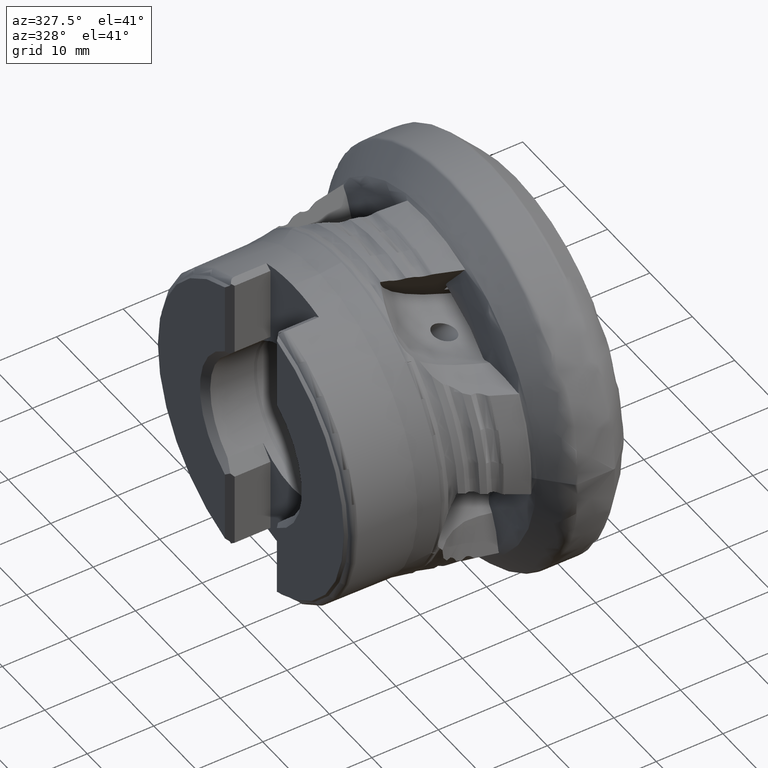
[diagram: clean part render]
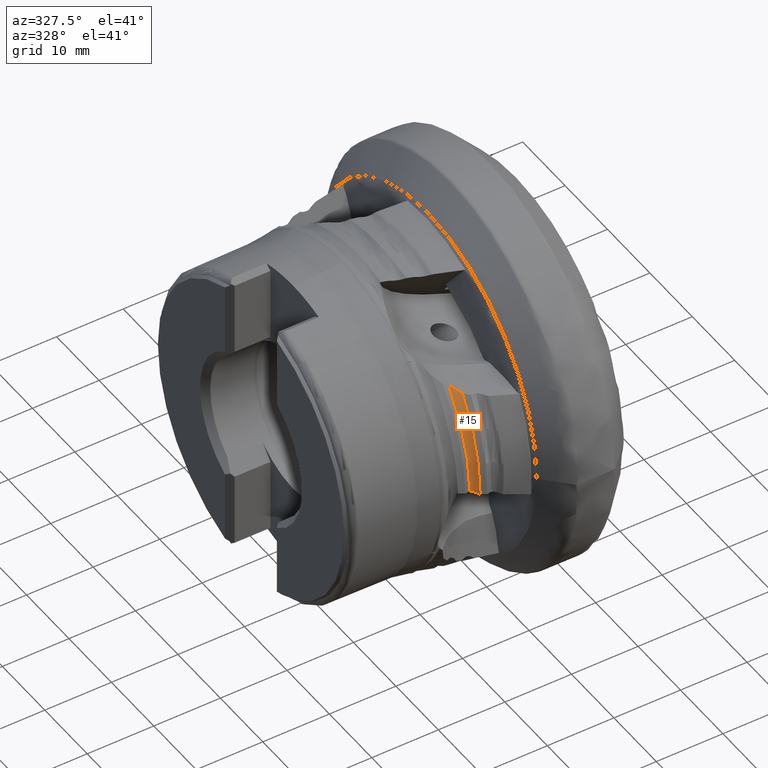
[diagram: same view with one face highlighted and labeled with its STEP entity id]
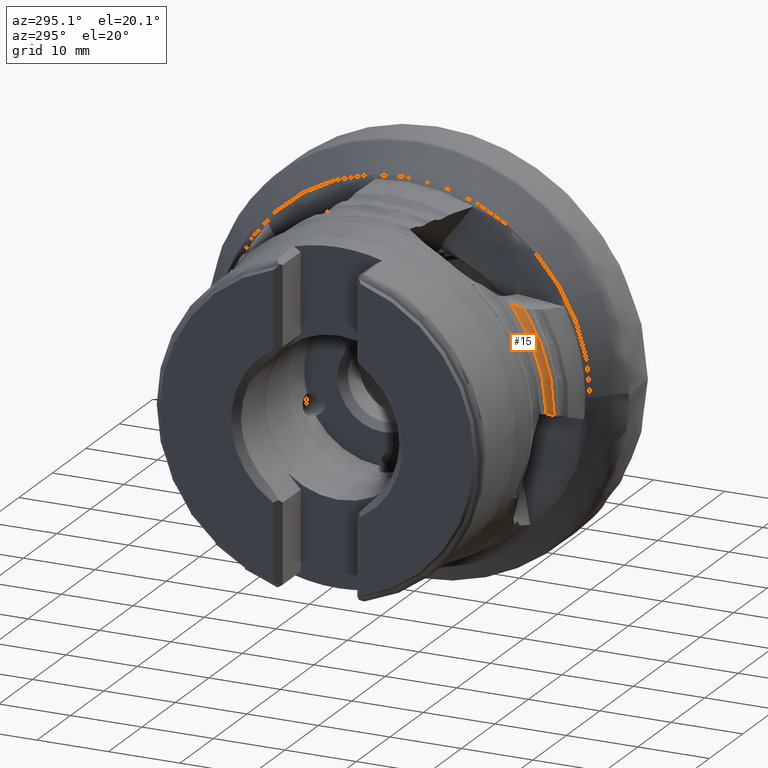
[diagram: same view with one face highlighted and labeled with its STEP entity id]
A machine part, auxiliary view. The second image highlights one B-rep face of the part: STEP entity #15.
A second angle (auxiliary view) of the same face is appended — the face is thin or edge-on in the first view.
In plain terms, the highlighted toroidal blend (fillet) surface has major radius 25.2457 mm and minor (blend) radius 1.5 mm.
Its self-contained STEP definition (entity closure, byte-faithful):
#15 = ADVANCED_FACE ( 'NONE', ( #1746 ), #5462, .F. ) ;
#249 = CARTESIAN_POINT ( 'NONE',  ( -20.71556792226179800, -23.84668045785165100, 0.1646405029636998400 ) ) ;
#682 = CARTESIAN_POINT ( 'NONE',  ( -21.26913860422335000, -18.79003307613161800, 14.51870425483459200 ) ) ;
#947 = AXIS2_PLACEMENT_3D ( 'NONE', #4992, #5093, #4273 ) ;
#1051 = CARTESIAN_POINT ( 'NONE',  ( -20.25124984357291400, -24.13842360979819900, -0.09261204101391594400 ) ) ;
#1390 = VERTEX_POINT ( 'NONE', #4953 ) ;
#1580 = VERTEX_POINT ( 'NONE', #6301 ) ;
#1681 = CARTESIAN_POINT ( 'NONE',  ( -21.03890216527068400, -23.75733691987038300, 0.3023562679458390900 ) ) ;
#1743 = CARTESIAN_POINT ( 'NONE',  ( -20.10400000000000300, -24.30018194437876400, -0.1993952609498842500 ) ) ;
#1746 = FACE_OUTER_BOUND ( 'NONE', #7371, .T. ) ;
#1896 = VERTEX_POINT ( 'NONE', #9634 ) ;
#1900 = DIRECTION ( 'NONE',  ( 0.0000000000000000000, 0.0000000000000000000, -1.000000000000000000 ) ) ;
#2040 = CIRCLE ( 'NONE', #947, 24.30099999999999500 ) ;
#2086 = B_SPLINE_CURVE_WITH_KNOTS ( 'NONE', 3,
 ( #682, #5092, #8863, #7445, #8180, #5060 ),
 .UNSPECIFIED., .F., .F.,
 ( 4, 2, 4 ),
 ( 0.001018915531260166300, 0.002003119328522951300, 0.002987323125785736900 ),
 .UNSPECIFIED. ) ;
#2184 = EDGE_CURVE ( 'NONE', #1390, #1580, #5440, .T. ) ;
#2342 = VERTEX_POINT ( 'NONE', #3589 ) ;
#2418 = CARTESIAN_POINT ( 'NONE',  ( -21.26913860422372700, -23.74261392527976300, 0.3826228385556110800 ) ) ;
#2479 = CARTESIAN_POINT ( 'NONE',  ( -20.51633495701825200, -23.94353649568278900, 0.06456698520503899300 ) ) ;
#3084 = ORIENTED_EDGE ( 'NONE', *, *, #6865, .F. ) ;
#3170 = DIRECTION ( 'NONE',  ( 0.0000000000000000000, 0.0000000000000000000, -1.000000000000000000 ) ) ;
#3589 = CARTESIAN_POINT ( 'NONE',  ( -20.10400000000000300, -24.30018194437876400, -0.1993952609498842500 ) ) ;
#3862 = CARTESIAN_POINT ( 'NONE',  ( -21.26913860422372700, 0.0000000000000000000, 0.0000000000000000000 ) ) ;
#4163 = DIRECTION ( 'NONE',  ( 1.000000000000000000, -0.0000000000000000000, -0.0000000000000000000 ) ) ;
#4273 = DIRECTION ( 'NONE',  ( 0.0000000000000000000, 0.0000000000000000000, -1.000000000000000000 ) ) ;
#4953 = CARTESIAN_POINT ( 'NONE',  ( -21.26913860422335000, -18.79003307613161800, 14.51870425483459200 ) ) ;
#4992 = CARTESIAN_POINT ( 'NONE',  ( -20.10400000000000600, 0.0000000000000000000, 0.0000000000000000000 ) ) ;
#5060 = CARTESIAN_POINT ( 'NONE',  ( -20.10399999999998900, -20.08601250764910500, 13.67811034253504600 ) ) ;
#5092 = CARTESIAN_POINT ( 'NONE',  ( -21.02201856342265900, -18.92135376958172100, 14.34874968242901800 ) ) ;
#5093 = DIRECTION ( 'NONE',  ( 1.000000000000000000, -0.0000000000000000000, -0.0000000000000000000 ) ) ;
#5440 = CIRCLE ( 'NONE', #6256, 23.74569679418721100 ) ;
#5462 = TOROIDAL_SURFACE ( 'NONE', #8425, 25.24569679418721100, 1.500000000000000400 ) ;
#6251 = CARTESIAN_POINT ( 'NONE',  ( -20.81998247715818500, -23.80921461568871000, 0.2122484172321395000 ) ) ;
#6256 = AXIS2_PLACEMENT_3D ( 'NONE', #3862, #6975, #3170 ) ;
#6301 = CARTESIAN_POINT ( 'NONE',  ( -21.26913860422372700, -23.74261392527976300, 0.3826228385556110800 ) ) ;
#6353 = EDGE_CURVE ( 'NONE', #1896, #2342, #2040, .T. ) ;
#6528 = B_SPLINE_CURVE_WITH_KNOTS ( 'NONE', 3,
 ( #1743, #9202, #1051, #6963, #2479, #249, #6251, #1681, #6894, #2418 ),
 .UNSPECIFIED., .F., .F.,
 ( 4, 2, 2, 2, 4 ),
 ( 3.473581673411960200E-007, 0.0003629321101047841200, 0.0007255168620422270400, 0.001088101613979670000, 0.001450686365917112900 ),
 .UNSPECIFIED. ) ;
#6865 = EDGE_CURVE ( 'NONE', #1390, #1896, #2086, .T. ) ;
#6894 = CARTESIAN_POINT ( 'NONE',  ( -21.15435036572633400, -23.74321933282760700, 0.3450559287228969800 ) ) ;
#6963 = CARTESIAN_POINT ( 'NONE',  ( -20.42202291943988300, -24.00306063902177600, 0.01221737803925344200 ) ) ;
#6975 = DIRECTION ( 'NONE',  ( 1.000000000000000000, -0.0000000000000000000, -0.0000000000000000000 ) ) ;
#7371 = EDGE_LOOP ( 'NONE', ( #3084, #8708, #8780, #7511 ) ) ;
#7445 = CARTESIAN_POINT ( 'NONE',  ( -20.40924373408123000, -19.55454652651526700, 13.91267933828597800 ) ) ;
#7511 = ORIENTED_EDGE ( 'NONE', *, *, #6353, .F. ) ;
#7929 = CARTESIAN_POINT ( 'NONE',  ( -21.26913860422372700, 0.0000000000000000000, 0.0000000000000000000 ) ) ;
#8180 = CARTESIAN_POINT ( 'NONE',  ( -20.24054244620199600, -19.80721648134980100, 13.78832372801673000 ) ) ;
#8425 = AXIS2_PLACEMENT_3D ( 'NONE', #7929, #4163, #1900 ) ;
#8708 = ORIENTED_EDGE ( 'NONE', *, *, #2184, .T. ) ;
#8780 = ORIENTED_EDGE ( 'NONE', *, *, #9548, .F. ) ;
#8863 = CARTESIAN_POINT ( 'NONE',  ( -20.79870222226878300, -19.11347594134844700, 14.19180072628515700 ) ) ;
#9202 = CARTESIAN_POINT ( 'NONE',  ( -20.17359684055776000, -24.21478287658607100, -0.1456690851976488200 ) ) ;
#9548 = EDGE_CURVE ( 'NONE', #2342, #1580, #6528, .T. ) ;
#9634 = CARTESIAN_POINT ( 'NONE',  ( -20.10399999999998900, -20.08601250764910500, 13.67811034253504600 ) ) ;